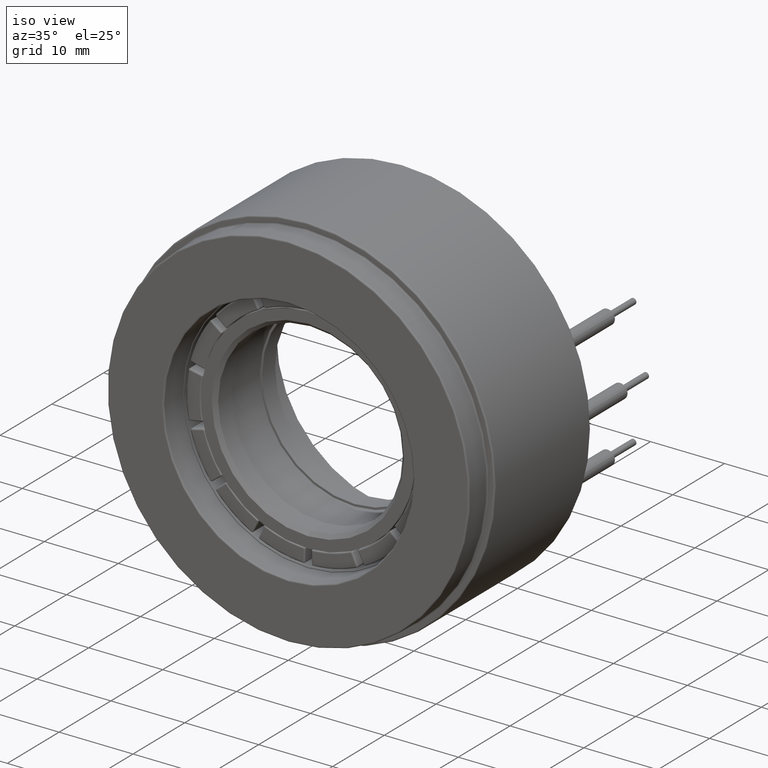
[diagram: clean part render]
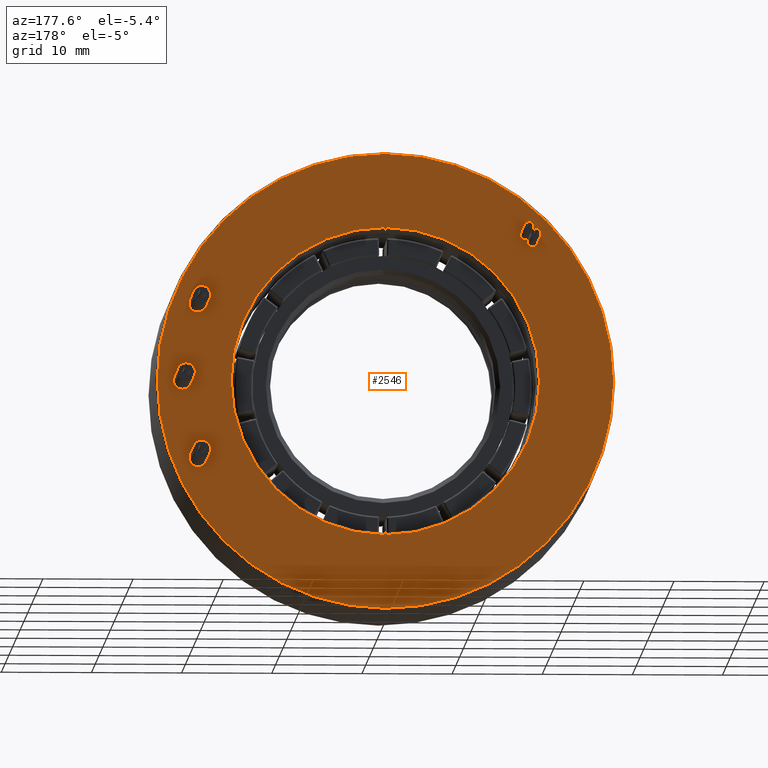
[diagram: tour spotlight — one face highlighted and labeled with its STEP entity id]
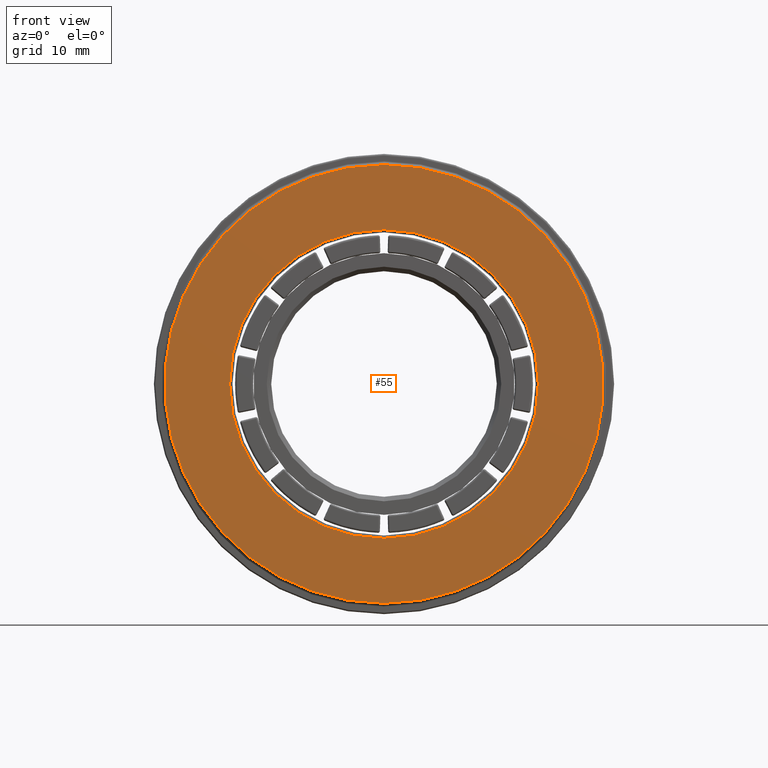
[diagram: tour spotlight — one face highlighted and labeled with its STEP entity id]
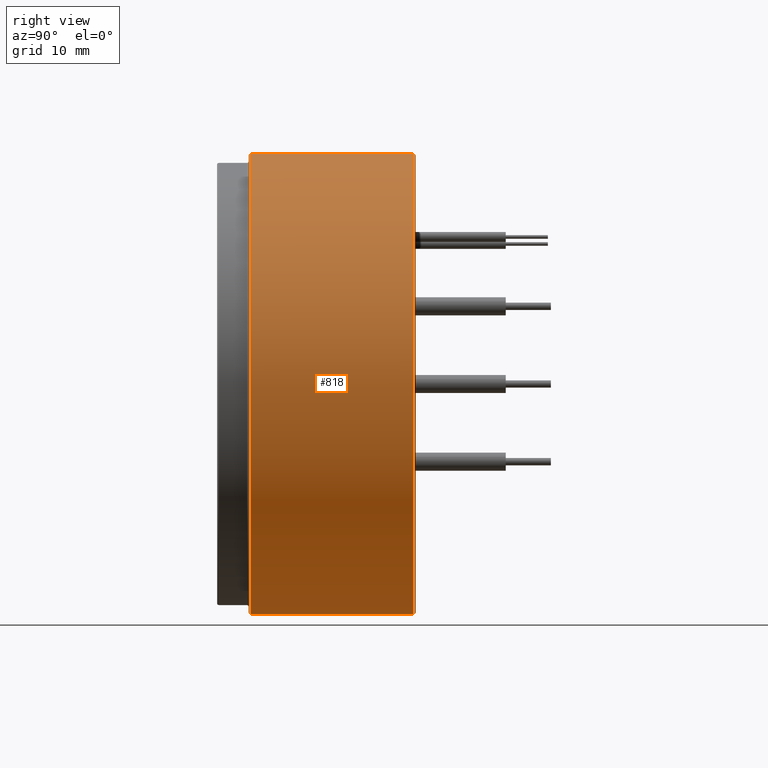
[diagram: tour spotlight — one face highlighted and labeled with its STEP entity id]
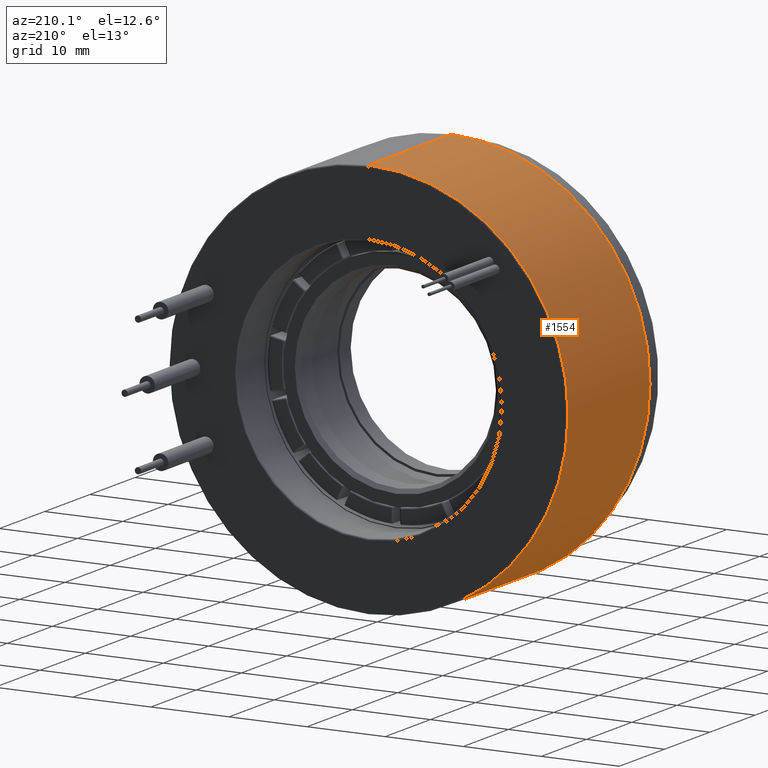
[diagram: tour spotlight — one face highlighted and labeled with its STEP entity id]
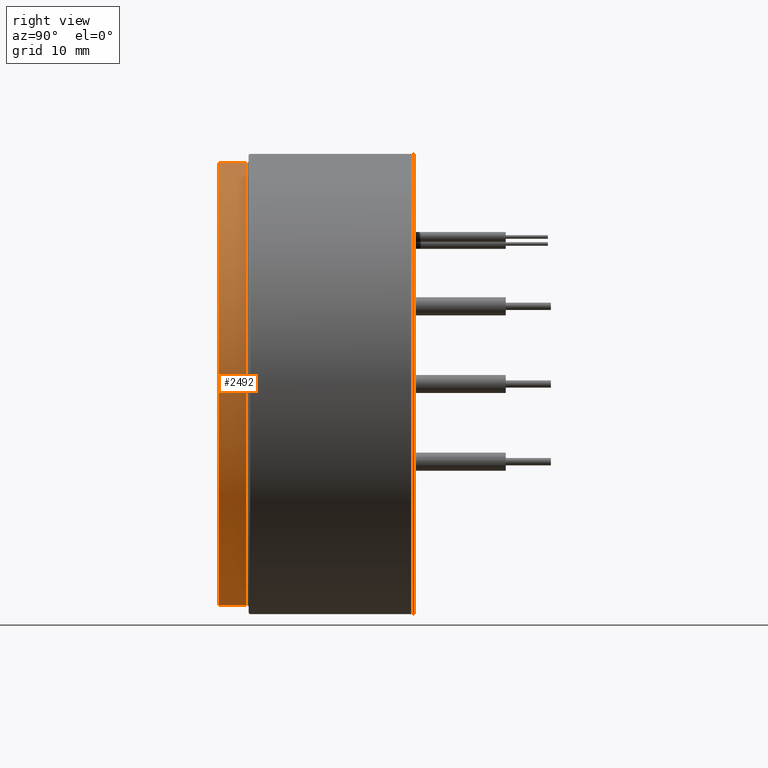
[diagram: tour spotlight — one face highlighted and labeled with its STEP entity id]
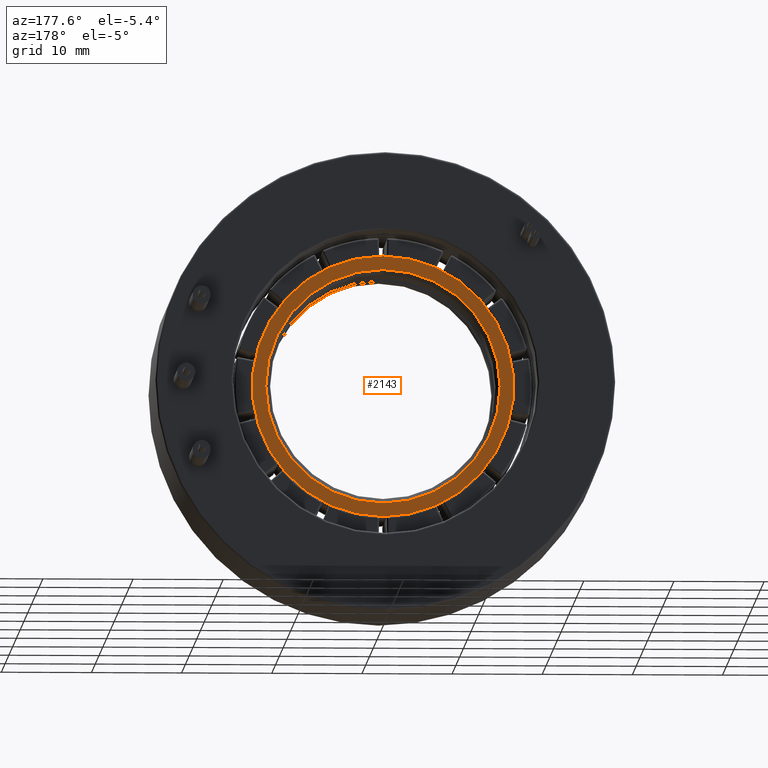
[diagram: tour spotlight — one face highlighted and labeled with its STEP entity id]
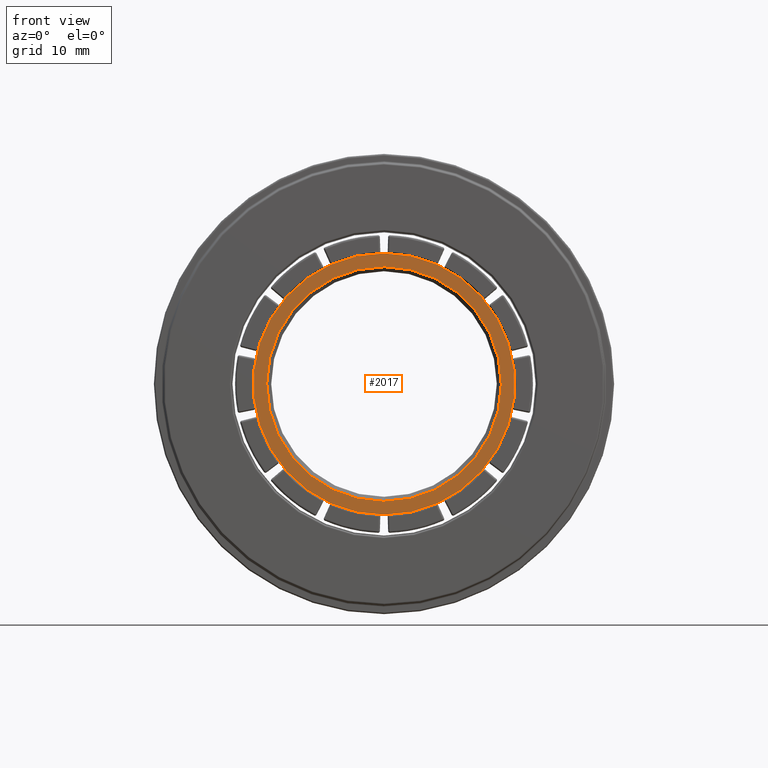
[diagram: tour spotlight — one face highlighted and labeled with its STEP entity id]
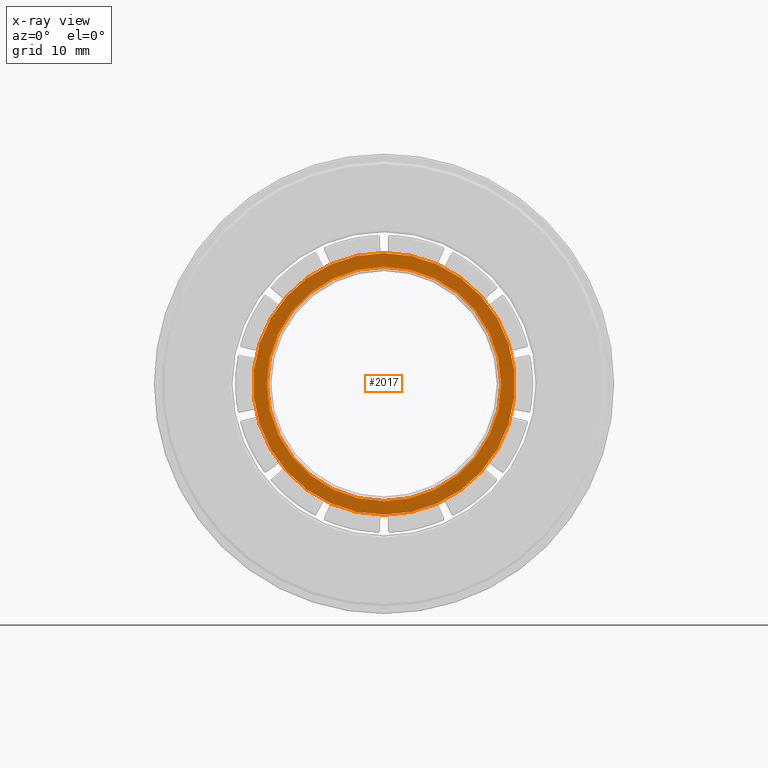
[diagram: x-ray of the same camera — body ghosted, this tour face saturated]
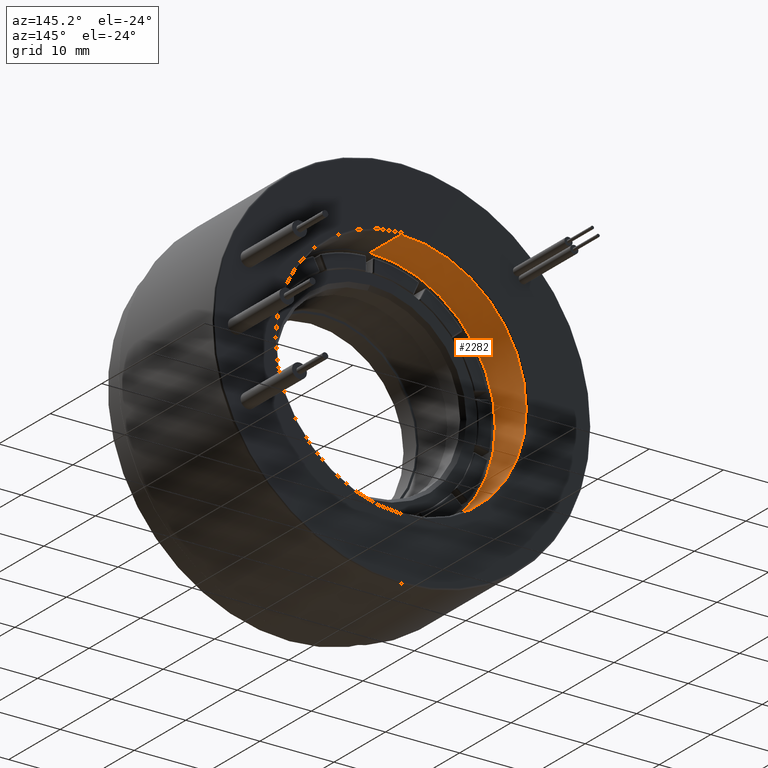
[diagram: tour spotlight — one face highlighted and labeled with its STEP entity id]
A machine part: a face-by-face anatomy tour. The part has 485 B-rep faces; the first image is the clean iso view, then the 8 largest visible faces are spotlighted one at a time (largest first), each with its STEP entity span.

Face 1 — auxiliary view, entity #2546. In plain terms, the highlighted planar face has unit normal (0, 1, 0).
Definition (entity closure, byte-faithful):
#136 = DIRECTION ( 'NONE',  ( 0.0000000000000000000, 0.0000000000000000000, 1.000000000000000000 ) ) ;
#180 = PLANE ( 'NONE',  #516 ) ;
#184 = VERTEX_POINT ( 'NONE', #2055 ) ;
#210 = CARTESIAN_POINT ( 'NONE',  ( 0.0000000000000000000, 22.00000000000000000, 25.30000000000000400 ) ) ;
#263 = EDGE_CURVE ( 'NONE', #826, #1551, #2102, .T. ) ;
#304 = CIRCLE ( 'NONE', #2394, 17.10000000000000500 ) ;
#437 = DIRECTION ( 'NONE',  ( -0.0000000000000000000, -1.000000000000000000, -0.0000000000000000000 ) ) ;
#516 = AXIS2_PLACEMENT_3D ( 'NONE', #1483, #738, #1443 ) ;
#738 = DIRECTION ( 'NONE',  ( 0.0000000000000000000, 1.000000000000000000, 0.0000000000000000000 ) ) ;
#826 = VERTEX_POINT ( 'NONE', #2913 ) ;
#917 = CARTESIAN_POINT ( 'NONE',  ( 0.0000000000000000000, 22.00000000000000000, 0.0000000000000000000 ) ) ;
#942 = DIRECTION ( 'NONE',  ( 0.0000000000000000000, 1.000000000000000000, 0.0000000000000000000 ) ) ;
#1000 = CARTESIAN_POINT ( 'NONE',  ( 0.0000000000000000000, 22.00000000000000000, 0.0000000000000000000 ) ) ;
#1151 = EDGE_CURVE ( 'NONE', #2743, #184, #2652, .T. ) ;
#1193 = CARTESIAN_POINT ( 'NONE',  ( 0.0000000000000000000, 22.00000000000000000, 0.0000000000000000000 ) ) ;
#1204 = ORIENTED_EDGE ( 'NONE', *, *, #2625, .T. ) ;
#1259 = AXIS2_PLACEMENT_3D ( 'NONE', #1193, #437, #2213 ) ;
#1401 = DIRECTION ( 'NONE',  ( -0.0000000000000000000, -1.000000000000000000, -0.0000000000000000000 ) ) ;
#1443 = DIRECTION ( 'NONE',  ( 0.0000000000000000000, -0.0000000000000000000, 1.000000000000000000 ) ) ;
#1473 = CARTESIAN_POINT ( 'NONE',  ( 0.0000000000000000000, 22.00000000000000000, 17.10000000000000500 ) ) ;
#1483 = CARTESIAN_POINT ( 'NONE',  ( 16.90000000000000600, 22.00000000000000000, 0.0000000000000000000 ) ) ;
#1504 = CIRCLE ( 'NONE', #1794, 25.30000000000000400 ) ;
#1551 = VERTEX_POINT ( 'NONE', #1473 ) ;
#1794 = AXIS2_PLACEMENT_3D ( 'NONE', #917, #942, #136 ) ;
#1924 = ORIENTED_EDGE ( 'NONE', *, *, #2620, .T. ) ;
#1980 = ORIENTED_EDGE ( 'NONE', *, *, #263, .T. ) ;
#2020 = FACE_OUTER_BOUND ( 'NONE', #3042, .T. ) ;
#2055 = CARTESIAN_POINT ( 'NONE',  ( 3.110602869834277700E-015, 22.00000000000000000, -25.30000000000000400 ) ) ;
#2102 = CIRCLE ( 'NONE', #1259, 17.10000000000000500 ) ;
#2213 = DIRECTION ( 'NONE',  ( 0.0000000000000000000, 0.0000000000000000000, 1.000000000000000000 ) ) ;
#2394 = AXIS2_PLACEMENT_3D ( 'NONE', #2929, #1401, #3206 ) ;
#2484 = DIRECTION ( 'NONE',  ( 0.0000000000000000000, 1.000000000000000000, 0.0000000000000000000 ) ) ;
#2546 = ADVANCED_FACE ( 'NONE', ( #2694, #2020 ), #180, .T. ) ;
#2620 = EDGE_CURVE ( 'NONE', #1551, #826, #304, .T. ) ;
#2625 = EDGE_CURVE ( 'NONE', #184, #2743, #1504, .T. ) ;
#2652 = CIRCLE ( 'NONE', #2671, 25.30000000000000400 ) ;
#2671 = AXIS2_PLACEMENT_3D ( 'NONE', #1000, #2484, #3016 ) ;
#2694 = FACE_BOUND ( 'NONE', #2933, .T. ) ;
#2743 = VERTEX_POINT ( 'NONE', #210 ) ;
#2913 = CARTESIAN_POINT ( 'NONE',  ( 2.094146026541974400E-015, 22.00000000000000000, -17.10000000000000500 ) ) ;
#2929 = CARTESIAN_POINT ( 'NONE',  ( 0.0000000000000000000, 22.00000000000000000, 0.0000000000000000000 ) ) ;
#2933 = EDGE_LOOP ( 'NONE', ( #1924, #1980 ) ) ;
#2960 = ORIENTED_EDGE ( 'NONE', *, *, #1151, .T. ) ;
#3016 = DIRECTION ( 'NONE',  ( 0.0000000000000000000, 0.0000000000000000000, 1.000000000000000000 ) ) ;
#3042 = EDGE_LOOP ( 'NONE', ( #2960, #1204 ) ) ;
#3206 = DIRECTION ( 'NONE',  ( 0.0000000000000000000, 0.0000000000000000000, 1.000000000000000000 ) ) ;

Face 2 — front view, entity #55. In plain terms, the highlighted planar face has unit normal (0, -1, 0).
Definition (entity closure, byte-faithful):
#55 = ADVANCED_FACE ( 'NONE', ( #2750, #2068 ), #706, .T. ) ;
#79 = AXIS2_PLACEMENT_3D ( 'NONE', #349, #943, #2190 ) ;
#349 = CARTESIAN_POINT ( 'NONE',  ( 0.0000000000000000000, -4.607859233063393800E-016, 0.0000000000000000000 ) ) ;
#452 = CARTESIAN_POINT ( 'NONE',  ( 24.50000000000000000, -4.653657836759941700E-016, 0.0000000000000000000 ) ) ;
#471 = AXIS2_PLACEMENT_3D ( 'NONE', #2337, #796, #2596 ) ;
#508 = EDGE_CURVE ( 'NONE', #1219, #2294, #2423, .T. ) ;
#512 = AXIS2_PLACEMENT_3D ( 'NONE', #1541, #2312, #2028 ) ;
#514 = CARTESIAN_POINT ( 'NONE',  ( 0.0000000000000000000, -4.607859233063393800E-016, 0.0000000000000000000 ) ) ;
#627 = ORIENTED_EDGE ( 'NONE', *, *, #508, .T. ) ;
#656 = ORIENTED_EDGE ( 'NONE', *, *, #1277, .T. ) ;
#706 = PLANE ( 'NONE',  #2149 ) ;
#796 = DIRECTION ( 'NONE',  ( 0.0000000000000000000, 1.000000000000000000, 0.0000000000000000000 ) ) ;
#801 = DIRECTION ( 'NONE',  ( 0.0000000000000000000, 0.0000000000000000000, -1.000000000000000000 ) ) ;
#943 = DIRECTION ( 'NONE',  ( -0.0000000000000000000, -1.000000000000000000, -0.0000000000000000000 ) ) ;
#1144 = EDGE_LOOP ( 'NONE', ( #3095, #656 ) ) ;
#1219 = VERTEX_POINT ( 'NONE', #2239 ) ;
#1277 = EDGE_CURVE ( 'NONE', #2327, #1664, #3200, .T. ) ;
#1287 = DIRECTION ( 'NONE',  ( -0.0000000000000000000, -1.000000000000000000, -0.0000000000000000000 ) ) ;
#1541 = CARTESIAN_POINT ( 'NONE',  ( 0.0000000000000000000, -4.607859233063393800E-016, 0.0000000000000000000 ) ) ;
#1664 = VERTEX_POINT ( 'NONE', #2745 ) ;
#1812 = CARTESIAN_POINT ( 'NONE',  ( 0.0000000000000000000, -4.607859233063393800E-016, -24.30000000000000100 ) ) ;
#1828 = EDGE_LOOP ( 'NONE', ( #2346, #627 ) ) ;
#2014 = CIRCLE ( 'NONE', #2675, 24.30000000000000100 ) ;
#2028 = DIRECTION ( 'NONE',  ( 0.0000000000000000000, 0.0000000000000000000, -1.000000000000000000 ) ) ;
#2068 = FACE_OUTER_BOUND ( 'NONE', #1828, .T. ) ;
#2149 = AXIS2_PLACEMENT_3D ( 'NONE', #452, #3225, #2463 ) ;
#2190 = DIRECTION ( 'NONE',  ( 0.0000000000000000000, 0.0000000000000000000, -1.000000000000000000 ) ) ;
#2239 = CARTESIAN_POINT ( 'NONE',  ( 2.988138189919542100E-015, -4.607859233063393800E-016, 24.30000000000000100 ) ) ;
#2294 = VERTEX_POINT ( 'NONE', #1812 ) ;
#2312 = DIRECTION ( 'NONE',  ( 0.0000000000000000000, 1.000000000000000000, 0.0000000000000000000 ) ) ;
#2316 = CARTESIAN_POINT ( 'NONE',  ( 2.094146026541974400E-015, -4.607859233063393800E-016, 17.10000000000000500 ) ) ;
#2327 = VERTEX_POINT ( 'NONE', #2316 ) ;
#2337 = CARTESIAN_POINT ( 'NONE',  ( 0.0000000000000000000, -4.607859233063393800E-016, 0.0000000000000000000 ) ) ;
#2346 = ORIENTED_EDGE ( 'NONE', *, *, #2803, .T. ) ;
#2364 = EDGE_CURVE ( 'NONE', #1664, #2327, #2940, .T. ) ;
#2423 = CIRCLE ( 'NONE', #79, 24.30000000000000100 ) ;
#2463 = DIRECTION ( 'NONE',  ( 0.0000000000000000000, 0.0000000000000000000, -1.000000000000000000 ) ) ;
#2596 = DIRECTION ( 'NONE',  ( 0.0000000000000000000, 0.0000000000000000000, -1.000000000000000000 ) ) ;
#2675 = AXIS2_PLACEMENT_3D ( 'NONE', #514, #1287, #801 ) ;
#2745 = CARTESIAN_POINT ( 'NONE',  ( 0.0000000000000000000, -4.607859233063393800E-016, -17.10000000000000500 ) ) ;
#2750 = FACE_BOUND ( 'NONE', #1144, .T. ) ;
#2803 = EDGE_CURVE ( 'NONE', #2294, #1219, #2014, .T. ) ;
#2940 = CIRCLE ( 'NONE', #471, 17.10000000000000500 ) ;
#3095 = ORIENTED_EDGE ( 'NONE', *, *, #2364, .T. ) ;
#3200 = CIRCLE ( 'NONE', #512, 17.10000000000000500 ) ;
#3225 = DIRECTION ( 'NONE',  ( 0.0000000000000000000, -1.000000000000000000, -0.0000000000000000000 ) ) ;

Face 3 — right view, entity #818. In plain terms, the highlighted cylindrical surface (partial cylindrical patch) has radius 25.5 mm, axis along (-0, -1, -0).
Definition (entity closure, byte-faithful):
#69 = EDGE_CURVE ( 'NONE', #298, #1683, #230, .T. ) ;
#176 = EDGE_LOOP ( 'NONE', ( #2474, #1773, #1373, #1706 ) ) ;
#178 = EDGE_CURVE ( 'NONE', #2467, #1607, #1426, .T. ) ;
#225 = DIRECTION ( 'NONE',  ( -0.0000000000000000000, -1.000000000000000000, -0.0000000000000000000 ) ) ;
#230 = CIRCLE ( 'NONE', #2728, 25.50000000000000400 ) ;
#298 = VERTEX_POINT ( 'NONE', #3041 ) ;
#505 = CARTESIAN_POINT ( 'NONE',  ( 0.0000000000000000000, 3.700000000000000200, -25.50000000000000400 ) ) ;
#561 = LINE ( 'NONE', #757, #3077 ) ;
#757 = CARTESIAN_POINT ( 'NONE',  ( 3.122849337825751000E-015, 0.0000000000000000000, 25.50000000000000400 ) ) ;
#772 = VECTOR ( 'NONE', #1123, 1000.000000000000000 ) ;
#818 = ADVANCED_FACE ( 'NONE', ( #3057 ), #1041, .T. ) ;
#869 = CARTESIAN_POINT ( 'NONE',  ( 0.0000000000000000000, 0.0000000000000000000, -25.50000000000000400 ) ) ;
#980 = DIRECTION ( 'NONE',  ( 0.0000000000000000000, 1.000000000000000000, 0.0000000000000000000 ) ) ;
#1041 = CYLINDRICAL_SURFACE ( 'NONE', #2348, 25.50000000000000400 ) ;
#1123 = DIRECTION ( 'NONE',  ( -0.0000000000000000000, -1.000000000000000000, -0.0000000000000000000 ) ) ;
#1325 = DIRECTION ( 'NONE',  ( -0.0000000000000000000, -1.000000000000000000, -0.0000000000000000000 ) ) ;
#1359 = EDGE_CURVE ( 'NONE', #1607, #298, #561, .T. ) ;
#1373 = ORIENTED_EDGE ( 'NONE', *, *, #69, .T. ) ;
#1426 = CIRCLE ( 'NONE', #2682, 25.50000000000000400 ) ;
#1465 = DIRECTION ( 'NONE',  ( 0.0000000000000000000, 0.0000000000000000000, -1.000000000000000000 ) ) ;
#1488 = EDGE_CURVE ( 'NONE', #2467, #1683, #1531, .T. ) ;
#1531 = LINE ( 'NONE', #869, #772 ) ;
#1561 = CARTESIAN_POINT ( 'NONE',  ( 0.0000000000000000000, 21.80000000000000100, 0.0000000000000000000 ) ) ;
#1607 = VERTEX_POINT ( 'NONE', #3179 ) ;
#1683 = VERTEX_POINT ( 'NONE', #505 ) ;
#1706 = ORIENTED_EDGE ( 'NONE', *, *, #1488, .F. ) ;
#1773 = ORIENTED_EDGE ( 'NONE', *, *, #1359, .T. ) ;
#2091 = CARTESIAN_POINT ( 'NONE',  ( 0.0000000000000000000, 21.80000000000000100, -25.50000000000000400 ) ) ;
#2151 = DIRECTION ( 'NONE',  ( 0.0000000000000000000, 0.0000000000000000000, 1.000000000000000000 ) ) ;
#2243 = CARTESIAN_POINT ( 'NONE',  ( 0.0000000000000000000, 3.700000000000000200, 0.0000000000000000000 ) ) ;
#2348 = AXIS2_PLACEMENT_3D ( 'NONE', #2930, #3184, #3173 ) ;
#2467 = VERTEX_POINT ( 'NONE', #2091 ) ;
#2474 = ORIENTED_EDGE ( 'NONE', *, *, #178, .T. ) ;
#2682 = AXIS2_PLACEMENT_3D ( 'NONE', #1561, #1325, #2151 ) ;
#2728 = AXIS2_PLACEMENT_3D ( 'NONE', #2243, #980, #1465 ) ;
#2930 = CARTESIAN_POINT ( 'NONE',  ( 0.0000000000000000000, 0.0000000000000000000, 0.0000000000000000000 ) ) ;
#3041 = CARTESIAN_POINT ( 'NONE',  ( 3.122849337825751000E-015, 3.700000000000000200, 25.50000000000000400 ) ) ;
#3057 = FACE_OUTER_BOUND ( 'NONE', #176, .T. ) ;
#3077 = VECTOR ( 'NONE', #225, 1000.000000000000000 ) ;
#3173 = DIRECTION ( 'NONE',  ( 0.0000000000000000000, 0.0000000000000000000, -1.000000000000000000 ) ) ;
#3179 = CARTESIAN_POINT ( 'NONE',  ( 3.122849337825751000E-015, 21.80000000000000100, 25.50000000000000400 ) ) ;
#3184 = DIRECTION ( 'NONE',  ( -0.0000000000000000000, -1.000000000000000000, -0.0000000000000000000 ) ) ;

Face 4 — auxiliary view, entity #1554. In plain terms, the highlighted cylindrical surface (partial cylindrical patch) has radius 25.5 mm, axis along (-0, -1, -0).
Definition (entity closure, byte-faithful):
#225 = DIRECTION ( 'NONE',  ( -0.0000000000000000000, -1.000000000000000000, -0.0000000000000000000 ) ) ;
#277 = CIRCLE ( 'NONE', #1590, 25.50000000000000400 ) ;
#298 = VERTEX_POINT ( 'NONE', #3041 ) ;
#385 = DIRECTION ( 'NONE',  ( 0.0000000000000000000, 0.0000000000000000000, 1.000000000000000000 ) ) ;
#476 = CIRCLE ( 'NONE', #2412, 25.50000000000000400 ) ;
#505 = CARTESIAN_POINT ( 'NONE',  ( 0.0000000000000000000, 3.700000000000000200, -25.50000000000000400 ) ) ;
#561 = LINE ( 'NONE', #757, #3077 ) ;
#728 = FACE_OUTER_BOUND ( 'NONE', #2538, .T. ) ;
#757 = CARTESIAN_POINT ( 'NONE',  ( 3.122849337825751000E-015, 0.0000000000000000000, 25.50000000000000400 ) ) ;
#772 = VECTOR ( 'NONE', #1123, 1000.000000000000000 ) ;
#869 = CARTESIAN_POINT ( 'NONE',  ( 0.0000000000000000000, 0.0000000000000000000, -25.50000000000000400 ) ) ;
#1123 = DIRECTION ( 'NONE',  ( -0.0000000000000000000, -1.000000000000000000, -0.0000000000000000000 ) ) ;
#1145 = DIRECTION ( 'NONE',  ( 0.0000000000000000000, 1.000000000000000000, 0.0000000000000000000 ) ) ;
#1159 = ORIENTED_EDGE ( 'NONE', *, *, #1359, .F. ) ;
#1242 = CARTESIAN_POINT ( 'NONE',  ( 0.0000000000000000000, 0.0000000000000000000, 0.0000000000000000000 ) ) ;
#1359 = EDGE_CURVE ( 'NONE', #1607, #298, #561, .T. ) ;
#1397 = DIRECTION ( 'NONE',  ( 0.0000000000000000000, 0.0000000000000000000, -1.000000000000000000 ) ) ;
#1456 = DIRECTION ( 'NONE',  ( -0.0000000000000000000, -1.000000000000000000, -0.0000000000000000000 ) ) ;
#1488 = EDGE_CURVE ( 'NONE', #2467, #1683, #1531, .T. ) ;
#1491 = DIRECTION ( 'NONE',  ( 0.0000000000000000000, 0.0000000000000000000, -1.000000000000000000 ) ) ;
#1531 = LINE ( 'NONE', #869, #772 ) ;
#1534 = ORIENTED_EDGE ( 'NONE', *, *, #1988, .T. ) ;
#1554 = ADVANCED_FACE ( 'NONE', ( #728 ), #1772, .T. ) ;
#1590 = AXIS2_PLACEMENT_3D ( 'NONE', #2322, #1145, #1397 ) ;
#1607 = VERTEX_POINT ( 'NONE', #3179 ) ;
#1629 = DIRECTION ( 'NONE',  ( -0.0000000000000000000, -1.000000000000000000, -0.0000000000000000000 ) ) ;
#1683 = VERTEX_POINT ( 'NONE', #505 ) ;
#1772 = CYLINDRICAL_SURFACE ( 'NONE', #3174, 25.50000000000000400 ) ;
#1903 = ORIENTED_EDGE ( 'NONE', *, *, #1488, .T. ) ;
#1925 = CARTESIAN_POINT ( 'NONE',  ( 0.0000000000000000000, 21.80000000000000100, 0.0000000000000000000 ) ) ;
#1988 = EDGE_CURVE ( 'NONE', #1607, #2467, #476, .T. ) ;
#2091 = CARTESIAN_POINT ( 'NONE',  ( 0.0000000000000000000, 21.80000000000000100, -25.50000000000000400 ) ) ;
#2322 = CARTESIAN_POINT ( 'NONE',  ( 0.0000000000000000000, 3.700000000000000200, 0.0000000000000000000 ) ) ;
#2412 = AXIS2_PLACEMENT_3D ( 'NONE', #1925, #1629, #385 ) ;
#2467 = VERTEX_POINT ( 'NONE', #2091 ) ;
#2538 = EDGE_LOOP ( 'NONE', ( #1159, #1534, #1903, #2856 ) ) ;
#2849 = EDGE_CURVE ( 'NONE', #1683, #298, #277, .T. ) ;
#2856 = ORIENTED_EDGE ( 'NONE', *, *, #2849, .T. ) ;
#3041 = CARTESIAN_POINT ( 'NONE',  ( 3.122849337825751000E-015, 3.700000000000000200, 25.50000000000000400 ) ) ;
#3077 = VECTOR ( 'NONE', #225, 1000.000000000000000 ) ;
#3174 = AXIS2_PLACEMENT_3D ( 'NONE', #1242, #1456, #1491 ) ;
#3179 = CARTESIAN_POINT ( 'NONE',  ( 3.122849337825751000E-015, 21.80000000000000100, 25.50000000000000400 ) ) ;

Face 5 — right view, entity #2492. In plain terms, the highlighted cylindrical surface (partial cylindrical patch) has radius 24.5 mm, axis along (-0, -1, -0).
Definition (entity closure, byte-faithful):
#68 = DIRECTION ( 'NONE',  ( -0.0000000000000000000, -1.000000000000000000, -0.0000000000000000000 ) ) ;
#90 = DIRECTION ( 'NONE',  ( 0.0000000000000000000, 0.0000000000000000000, -1.000000000000000000 ) ) ;
#182 = VECTOR ( 'NONE', #883, 1000.000000000000000 ) ;
#216 = ORIENTED_EDGE ( 'NONE', *, *, #2482, .T. ) ;
#264 = LINE ( 'NONE', #1345, #182 ) ;
#307 = ORIENTED_EDGE ( 'NONE', *, *, #898, .F. ) ;
#423 = VERTEX_POINT ( 'NONE', #897 ) ;
#474 = LINE ( 'NONE', #1420, #1085 ) ;
#569 = CARTESIAN_POINT ( 'NONE',  ( 3.000384657911015500E-015, 3.299999999999999800, 24.50000000000000000 ) ) ;
#624 = AXIS2_PLACEMENT_3D ( 'NONE', #1583, #68, #2361 ) ;
#646 = ORIENTED_EDGE ( 'NONE', *, *, #3063, .T. ) ;
#687 = AXIS2_PLACEMENT_3D ( 'NONE', #2619, #1358, #90 ) ;
#792 = CARTESIAN_POINT ( 'NONE',  ( 0.0000000000000000000, 3.299999999999999800, -24.50000000000000000 ) ) ;
#804 = AXIS2_PLACEMENT_3D ( 'NONE', #1875, #2862, #2372 ) ;
#883 = DIRECTION ( 'NONE',  ( -0.0000000000000000000, -1.000000000000000000, -0.0000000000000000000 ) ) ;
#897 = CARTESIAN_POINT ( 'NONE',  ( 0.0000000000000000000, 0.1999999999999995400, -24.50000000000000000 ) ) ;
#898 = EDGE_CURVE ( 'NONE', #2880, #423, #264, .T. ) ;
#1085 = VECTOR ( 'NONE', #1431, 1000.000000000000000 ) ;
#1113 = CIRCLE ( 'NONE', #624, 24.50000000000000000 ) ;
#1345 = CARTESIAN_POINT ( 'NONE',  ( 0.0000000000000000000, 0.0000000000000000000, -24.50000000000000000 ) ) ;
#1358 = DIRECTION ( 'NONE',  ( -0.0000000000000000000, -1.000000000000000000, -0.0000000000000000000 ) ) ;
#1404 = VERTEX_POINT ( 'NONE', #569 ) ;
#1420 = CARTESIAN_POINT ( 'NONE',  ( 3.000384657911015500E-015, 0.0000000000000000000, 24.50000000000000000 ) ) ;
#1431 = DIRECTION ( 'NONE',  ( -0.0000000000000000000, -1.000000000000000000, -0.0000000000000000000 ) ) ;
#1583 = CARTESIAN_POINT ( 'NONE',  ( 0.0000000000000000000, 3.299999999999999800, 0.0000000000000000000 ) ) ;
#1714 = VERTEX_POINT ( 'NONE', #2034 ) ;
#1811 = ORIENTED_EDGE ( 'NONE', *, *, #2424, .T. ) ;
#1875 = CARTESIAN_POINT ( 'NONE',  ( 0.0000000000000000000, 0.1999999999999995400, 0.0000000000000000000 ) ) ;
#1949 = FACE_OUTER_BOUND ( 'NONE', #2207, .T. ) ;
#2034 = CARTESIAN_POINT ( 'NONE',  ( 3.000384657911015500E-015, 0.1999999999999995400, 24.50000000000000000 ) ) ;
#2098 = CIRCLE ( 'NONE', #804, 24.50000000000000000 ) ;
#2207 = EDGE_LOOP ( 'NONE', ( #1811, #646, #216, #307 ) ) ;
#2361 = DIRECTION ( 'NONE',  ( 0.0000000000000000000, 0.0000000000000000000, -1.000000000000000000 ) ) ;
#2372 = DIRECTION ( 'NONE',  ( 0.0000000000000000000, 0.0000000000000000000, -1.000000000000000000 ) ) ;
#2424 = EDGE_CURVE ( 'NONE', #2880, #1404, #1113, .T. ) ;
#2482 = EDGE_CURVE ( 'NONE', #1714, #423, #2098, .T. ) ;
#2492 = ADVANCED_FACE ( 'NONE', ( #1949 ), #2578, .T. ) ;
#2578 = CYLINDRICAL_SURFACE ( 'NONE', #687, 24.50000000000000000 ) ;
#2619 = CARTESIAN_POINT ( 'NONE',  ( 0.0000000000000000000, 0.0000000000000000000, 0.0000000000000000000 ) ) ;
#2862 = DIRECTION ( 'NONE',  ( 0.0000000000000000000, 1.000000000000000000, 0.0000000000000000000 ) ) ;
#2880 = VERTEX_POINT ( 'NONE', #792 ) ;
#3063 = EDGE_CURVE ( 'NONE', #1404, #1714, #474, .T. ) ;

Face 6 — auxiliary view, entity #2143. In plain terms, the highlighted planar face has unit normal (0, 1, 0).
Definition (entity closure, byte-faithful):
#4 = CIRCLE ( 'NONE', #208, 13.00000000000000500 ) ;
#93 = AXIS2_PLACEMENT_3D ( 'NONE', #2444, #422, #2194 ) ;
#122 = CIRCLE ( 'NONE', #2952, 14.50000000000000000 ) ;
#201 = CARTESIAN_POINT ( 'NONE',  ( 1.592040838891559700E-015, 12.00000000000000000, -13.00000000000000500 ) ) ;
#208 = AXIS2_PLACEMENT_3D ( 'NONE', #3155, #888, #1395 ) ;
#322 = DIRECTION ( 'NONE',  ( -0.0000000000000000000, -1.000000000000000000, -0.0000000000000000000 ) ) ;
#422 = DIRECTION ( 'NONE',  ( 0.0000000000000000000, 1.000000000000000000, 0.0000000000000000000 ) ) ;
#668 = ORIENTED_EDGE ( 'NONE', *, *, #1864, .F. ) ;
#669 = PLANE ( 'NONE',  #93 ) ;
#837 = CARTESIAN_POINT ( 'NONE',  ( 0.0000000000000000000, 12.00000000000000000, -14.50000000000000000 ) ) ;
#861 = ORIENTED_EDGE ( 'NONE', *, *, #2439, .T. ) ;
#873 = DIRECTION ( 'NONE',  ( 0.0000000000000000000, 0.0000000000000000000, 1.000000000000000000 ) ) ;
#888 = DIRECTION ( 'NONE',  ( -0.0000000000000000000, -1.000000000000000000, -0.0000000000000000000 ) ) ;
#939 = VERTEX_POINT ( 'NONE', #837 ) ;
#1048 = EDGE_CURVE ( 'NONE', #3161, #1616, #4, .T. ) ;
#1062 = CARTESIAN_POINT ( 'NONE',  ( 0.0000000000000000000, 12.00000000000000000, 0.0000000000000000000 ) ) ;
#1292 = DIRECTION ( 'NONE',  ( -0.0000000000000000000, -1.000000000000000000, -0.0000000000000000000 ) ) ;
#1395 = DIRECTION ( 'NONE',  ( 0.0000000000000000000, 0.0000000000000000000, 1.000000000000000000 ) ) ;
#1556 = FACE_BOUND ( 'NONE', #2806, .T. ) ;
#1606 = ORIENTED_EDGE ( 'NONE', *, *, #2343, .F. ) ;
#1616 = VERTEX_POINT ( 'NONE', #2770 ) ;
#1700 = CIRCLE ( 'NONE', #3146, 13.00000000000000500 ) ;
#1830 = DIRECTION ( 'NONE',  ( 0.0000000000000000000, 0.0000000000000000000, -1.000000000000000000 ) ) ;
#1863 = CARTESIAN_POINT ( 'NONE',  ( 0.0000000000000000000, 12.00000000000000000, 0.0000000000000000000 ) ) ;
#1864 = EDGE_CURVE ( 'NONE', #939, #2646, #122, .T. ) ;
#1984 = ORIENTED_EDGE ( 'NONE', *, *, #1048, .T. ) ;
#2134 = EDGE_LOOP ( 'NONE', ( #668, #1606 ) ) ;
#2143 = ADVANCED_FACE ( 'NONE', ( #1556, #2941 ), #669, .T. ) ;
#2194 = DIRECTION ( 'NONE',  ( 0.0000000000000000000, -0.0000000000000000000, 1.000000000000000000 ) ) ;
#2339 = CIRCLE ( 'NONE', #2567, 14.50000000000000000 ) ;
#2343 = EDGE_CURVE ( 'NONE', #2646, #939, #2339, .T. ) ;
#2366 = DIRECTION ( 'NONE',  ( 0.0000000000000000000, 0.0000000000000000000, -1.000000000000000000 ) ) ;
#2439 = EDGE_CURVE ( 'NONE', #1616, #3161, #1700, .T. ) ;
#2444 = CARTESIAN_POINT ( 'NONE',  ( 12.50000000000000000, 12.00000000000000000, 0.0000000000000000000 ) ) ;
#2567 = AXIS2_PLACEMENT_3D ( 'NONE', #1062, #1292, #1830 ) ;
#2646 = VERTEX_POINT ( 'NONE', #2702 ) ;
#2702 = CARTESIAN_POINT ( 'NONE',  ( 1.775737858763662000E-015, 12.00000000000000000, 14.50000000000000000 ) ) ;
#2770 = CARTESIAN_POINT ( 'NONE',  ( 0.0000000000000000000, 12.00000000000000000, 13.00000000000000500 ) ) ;
#2806 = EDGE_LOOP ( 'NONE', ( #861, #1984 ) ) ;
#2892 = CARTESIAN_POINT ( 'NONE',  ( 0.0000000000000000000, 12.00000000000000000, 0.0000000000000000000 ) ) ;
#2899 = DIRECTION ( 'NONE',  ( -0.0000000000000000000, -1.000000000000000000, -0.0000000000000000000 ) ) ;
#2941 = FACE_OUTER_BOUND ( 'NONE', #2134, .T. ) ;
#2952 = AXIS2_PLACEMENT_3D ( 'NONE', #2892, #322, #2366 ) ;
#3146 = AXIS2_PLACEMENT_3D ( 'NONE', #1863, #2899, #873 ) ;
#3155 = CARTESIAN_POINT ( 'NONE',  ( 0.0000000000000000000, 12.00000000000000000, 0.0000000000000000000 ) ) ;
#3161 = VERTEX_POINT ( 'NONE', #201 ) ;

Face 7 — front view, entity #2017. An x-ray twin of the same camera follows (body ghosted, this face saturated) — the face is partly hidden behind the body. In plain terms, the highlighted planar face has unit normal (-0, -1, 0).
Definition (entity closure, byte-faithful):
#9 = CARTESIAN_POINT ( 'NONE',  ( 0.0000000000000000000, 0.0000000000000000000, 0.0000000000000000000 ) ) ;
#239 = CIRCLE ( 'NONE', #956, 13.00000000000001800 ) ;
#256 = CARTESIAN_POINT ( 'NONE',  ( 1.592040838891561100E-015, 0.0000000000000000000, 13.00000000000001800 ) ) ;
#299 = CARTESIAN_POINT ( 'NONE',  ( 0.0000000000000000000, 0.0000000000000000000, 0.0000000000000000000 ) ) ;
#311 = DIRECTION ( 'NONE',  ( 0.0000000000000000000, 1.000000000000000000, 0.0000000000000000000 ) ) ;
#357 = EDGE_CURVE ( 'NONE', #2158, #409, #432, .T. ) ;
#394 = DIRECTION ( 'NONE',  ( 0.0000000000000000000, 0.0000000000000000000, -1.000000000000000000 ) ) ;
#404 = EDGE_LOOP ( 'NONE', ( #972, #597 ) ) ;
#409 = VERTEX_POINT ( 'NONE', #3152 ) ;
#432 = CIRCLE ( 'NONE', #1871, 14.50000000000000000 ) ;
#571 = DIRECTION ( 'NONE',  ( 0.0000000000000000000, 0.0000000000000000000, -1.000000000000000000 ) ) ;
#597 = ORIENTED_EDGE ( 'NONE', *, *, #1382, .T. ) ;
#755 = DIRECTION ( 'NONE',  ( 0.0000000000000000000, 0.0000000000000000000, -1.000000000000000000 ) ) ;
#825 = CARTESIAN_POINT ( 'NONE',  ( 0.0000000000000000000, 0.0000000000000000000, 0.0000000000000000000 ) ) ;
#847 = DIRECTION ( 'NONE',  ( 0.0000000000000000000, 0.0000000000000000000, -1.000000000000000000 ) ) ;
#956 = AXIS2_PLACEMENT_3D ( 'NONE', #9, #3065, #755 ) ;
#972 = ORIENTED_EDGE ( 'NONE', *, *, #1695, .T. ) ;
#1130 = DIRECTION ( 'NONE',  ( 0.0000000000000000000, 0.0000000000000000000, -1.000000000000000000 ) ) ;
#1236 = CARTESIAN_POINT ( 'NONE',  ( 0.0000000000000000000, 0.0000000000000000000, -13.00000000000001800 ) ) ;
#1316 = DIRECTION ( 'NONE',  ( -0.0000000000000000000, -1.000000000000000000, -0.0000000000000000000 ) ) ;
#1372 = PLANE ( 'NONE',  #2783 ) ;
#1382 = EDGE_CURVE ( 'NONE', #2827, #2600, #1967, .T. ) ;
#1695 = EDGE_CURVE ( 'NONE', #2600, #2827, #239, .T. ) ;
#1871 = AXIS2_PLACEMENT_3D ( 'NONE', #299, #1316, #571 ) ;
#1882 = AXIS2_PLACEMENT_3D ( 'NONE', #2191, #2201, #394 ) ;
#1901 = EDGE_LOOP ( 'NONE', ( #2792, #2124 ) ) ;
#1967 = CIRCLE ( 'NONE', #2808, 13.00000000000001800 ) ;
#2017 = ADVANCED_FACE ( 'NONE', ( #2070, #2464 ), #1372, .T. ) ;
#2070 = FACE_BOUND ( 'NONE', #404, .T. ) ;
#2124 = ORIENTED_EDGE ( 'NONE', *, *, #357, .T. ) ;
#2158 = VERTEX_POINT ( 'NONE', #2979 ) ;
#2191 = CARTESIAN_POINT ( 'NONE',  ( 0.0000000000000000000, 0.0000000000000000000, 0.0000000000000000000 ) ) ;
#2201 = DIRECTION ( 'NONE',  ( -0.0000000000000000000, -1.000000000000000000, -0.0000000000000000000 ) ) ;
#2430 = CIRCLE ( 'NONE', #1882, 14.50000000000000000 ) ;
#2464 = FACE_OUTER_BOUND ( 'NONE', #1901, .T. ) ;
#2600 = VERTEX_POINT ( 'NONE', #1236 ) ;
#2654 = DIRECTION ( 'NONE',  ( 0.0000000000000000000, -1.000000000000000000, -0.0000000000000000000 ) ) ;
#2783 = AXIS2_PLACEMENT_3D ( 'NONE', #3156, #2654, #1130 ) ;
#2792 = ORIENTED_EDGE ( 'NONE', *, *, #3008, .T. ) ;
#2808 = AXIS2_PLACEMENT_3D ( 'NONE', #825, #311, #847 ) ;
#2827 = VERTEX_POINT ( 'NONE', #256 ) ;
#2979 = CARTESIAN_POINT ( 'NONE',  ( 1.775737858763662000E-015, 0.0000000000000000000, 14.50000000000000000 ) ) ;
#3008 = EDGE_CURVE ( 'NONE', #409, #2158, #2430, .T. ) ;
#3065 = DIRECTION ( 'NONE',  ( 0.0000000000000000000, 1.000000000000000000, 0.0000000000000000000 ) ) ;
#3152 = CARTESIAN_POINT ( 'NONE',  ( 0.0000000000000000000, 0.0000000000000000000, -14.50000000000000000 ) ) ;
#3156 = CARTESIAN_POINT ( 'NONE',  ( 12.50000000000000000, 0.0000000000000000000, 0.0000000000000000000 ) ) ;

Face 8 — auxiliary view, entity #2282. In plain terms, the highlighted cylindrical surface (partial cylindrical patch) has radius 16.9 mm, axis along (-0, -1, -0).
Definition (entity closure, byte-faithful):
#252 = ORIENTED_EDGE ( 'NONE', *, *, #2277, .T. ) ;
#292 = VERTEX_POINT ( 'NONE', #2547 ) ;
#314 = CYLINDRICAL_SURFACE ( 'NONE', #1508, 16.90000000000000600 ) ;
#372 = EDGE_CURVE ( 'NONE', #1969, #1731, #1229, .T. ) ;
#407 = CARTESIAN_POINT ( 'NONE',  ( 0.0000000000000000000, 21.80000000000000100, -16.90000000000000600 ) ) ;
#453 = DIRECTION ( 'NONE',  ( -0.0000000000000000000, -1.000000000000000000, -0.0000000000000000000 ) ) ;
#589 = FACE_OUTER_BOUND ( 'NONE', #1592, .T. ) ;
#640 = CARTESIAN_POINT ( 'NONE',  ( 2.069653090559027700E-015, 15.79999999999999900, 16.90000000000000600 ) ) ;
#788 = EDGE_CURVE ( 'NONE', #2981, #1731, #2742, .T. ) ;
#832 = EDGE_CURVE ( 'NONE', #2981, #292, #2381, .T. ) ;
#874 = LINE ( 'NONE', #1991, #1585 ) ;
#1170 = DIRECTION ( 'NONE',  ( -0.0000000000000000000, -1.000000000000000000, -0.0000000000000000000 ) ) ;
#1229 = CIRCLE ( 'NONE', #1409, 16.90000000000000600 ) ;
#1409 = AXIS2_PLACEMENT_3D ( 'NONE', #1849, #2608, #2360 ) ;
#1508 = AXIS2_PLACEMENT_3D ( 'NONE', #2232, #3261, #1745 ) ;
#1539 = CARTESIAN_POINT ( 'NONE',  ( 0.0000000000000000000, 15.79999999999999900, -16.90000000000000600 ) ) ;
#1568 = ORIENTED_EDGE ( 'NONE', *, *, #832, .T. ) ;
#1585 = VECTOR ( 'NONE', #453, 1000.000000000000000 ) ;
#1592 = EDGE_LOOP ( 'NONE', ( #1568, #252, #2456, #2236 ) ) ;
#1646 = CARTESIAN_POINT ( 'NONE',  ( 0.0000000000000000000, 0.0000000000000000000, -16.90000000000000600 ) ) ;
#1731 = VERTEX_POINT ( 'NONE', #1539 ) ;
#1745 = DIRECTION ( 'NONE',  ( 0.0000000000000000000, 0.0000000000000000000, -1.000000000000000000 ) ) ;
#1846 = DIRECTION ( 'NONE',  ( 0.0000000000000000000, 1.000000000000000000, 0.0000000000000000000 ) ) ;
#1849 = CARTESIAN_POINT ( 'NONE',  ( 0.0000000000000000000, 15.79999999999999900, 0.0000000000000000000 ) ) ;
#1969 = VERTEX_POINT ( 'NONE', #640 ) ;
#1991 = CARTESIAN_POINT ( 'NONE',  ( 2.069653090559027700E-015, 0.0000000000000000000, 16.90000000000000600 ) ) ;
#2069 = AXIS2_PLACEMENT_3D ( 'NONE', #2163, #1846, #2847 ) ;
#2163 = CARTESIAN_POINT ( 'NONE',  ( 0.0000000000000000000, 21.80000000000000100, 0.0000000000000000000 ) ) ;
#2232 = CARTESIAN_POINT ( 'NONE',  ( 0.0000000000000000000, 0.0000000000000000000, 0.0000000000000000000 ) ) ;
#2236 = ORIENTED_EDGE ( 'NONE', *, *, #788, .F. ) ;
#2277 = EDGE_CURVE ( 'NONE', #292, #1969, #874, .T. ) ;
#2282 = ADVANCED_FACE ( 'NONE', ( #589 ), #314, .F. ) ;
#2360 = DIRECTION ( 'NONE',  ( 0.0000000000000000000, 0.0000000000000000000, -1.000000000000000000 ) ) ;
#2381 = CIRCLE ( 'NONE', #2069, 16.90000000000000600 ) ;
#2451 = VECTOR ( 'NONE', #1170, 1000.000000000000000 ) ;
#2456 = ORIENTED_EDGE ( 'NONE', *, *, #372, .T. ) ;
#2547 = CARTESIAN_POINT ( 'NONE',  ( 2.069653090559027700E-015, 21.80000000000000100, 16.90000000000000600 ) ) ;
#2608 = DIRECTION ( 'NONE',  ( -0.0000000000000000000, -1.000000000000000000, -0.0000000000000000000 ) ) ;
#2742 = LINE ( 'NONE', #1646, #2451 ) ;
#2847 = DIRECTION ( 'NONE',  ( 0.0000000000000000000, 0.0000000000000000000, 1.000000000000000000 ) ) ;
#2981 = VERTEX_POINT ( 'NONE', #407 ) ;
#3261 = DIRECTION ( 'NONE',  ( -0.0000000000000000000, -1.000000000000000000, -0.0000000000000000000 ) ) ;